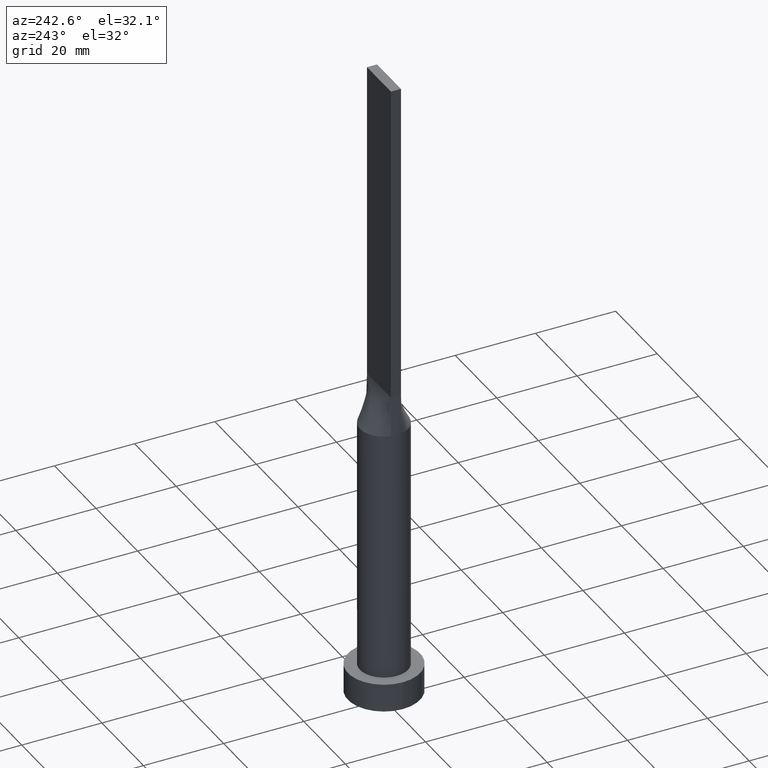
[diagram: clean part render]
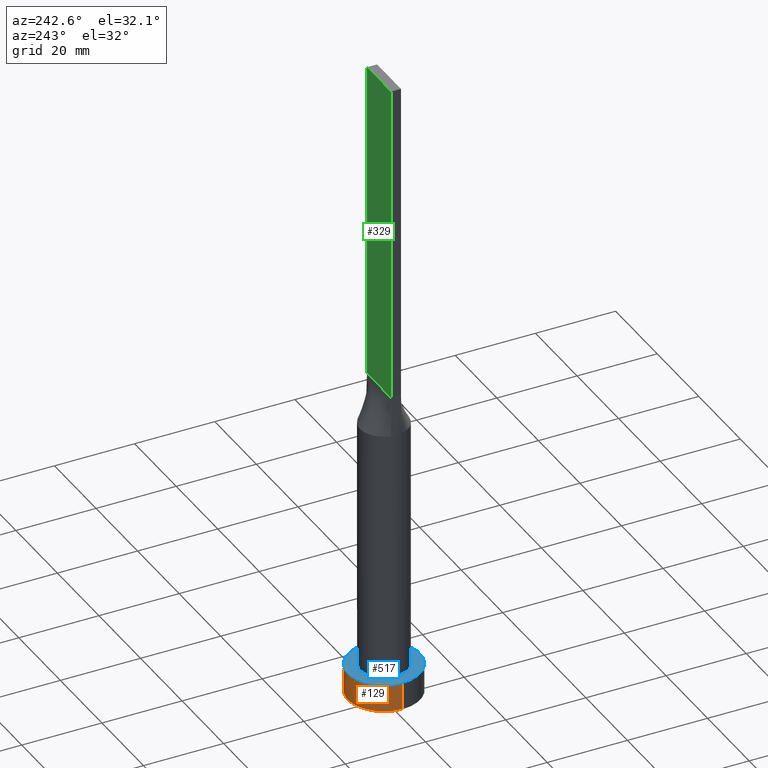
[diagram: same view with three faces highlighted in distinct colors, each labeled with its STEP entity id]
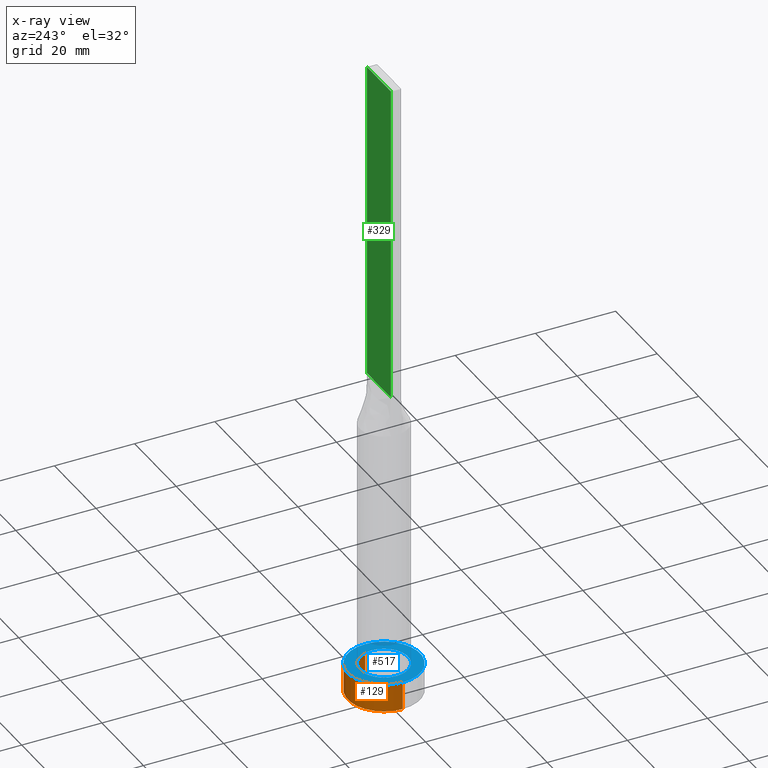
[diagram: x-ray of the same camera — body ghosted, the three highlighted faces saturated]
A machine part, auxiliary view with three faces highlighted in distinct colors.
The next image is the same camera in x-ray (body ghosted, the three faces saturated) — at least one of them is partly hidden behind the body in this view.
Their STEP definitions:

[orange] entity #129 — the highlighted cylindrical surface (partial cylindrical patch) has radius 9 mm, axis along (-0, -0, -1).
#40 = EDGE_CURVE ( 'NONE', #205, #430, #507, .T. ) ;
#47 = EDGE_LOOP ( 'NONE', ( #166, #367, #440, #488 ) ) ;
#53 = DIRECTION ( 'NONE',  ( 1.000000000000000000, 0.000000000000000000, 0.000000000000000000 ) ) ;
#54 = VECTOR ( 'NONE', #258, 1000.000000000000000 ) ;
#72 = CARTESIAN_POINT ( 'NONE',  ( 9.000000000000000000, 1.102182119232617714E-15, 7.000000000000000000 ) ) ;
#75 = LINE ( 'NONE', #72, #54 ) ;
#91 = CARTESIAN_POINT ( 'NONE',  ( -9.000000000000000000, 0.000000000000000000, 7.000000000000000000 ) ) ;
#117 = CARTESIAN_POINT ( 'NONE',  ( 9.000000000000000000, 1.102182119232617714E-15, 0.000000000000000000 ) ) ;
#124 = CARTESIAN_POINT ( 'NONE',  ( 0.000000000000000000, 0.000000000000000000, 0.000000000000000000 ) ) ;
#129 = ADVANCED_FACE ( 'NONE', ( #161 ), #530, .T. ) ;
#161 = FACE_OUTER_BOUND ( 'NONE', #47, .T. ) ;
#166 = ORIENTED_EDGE ( 'NONE', *, *, #40, .F. ) ;
#199 = CARTESIAN_POINT ( 'NONE',  ( -9.000000000000000000, 0.000000000000000000, 7.000000000000000000 ) ) ;
#205 = VERTEX_POINT ( 'NONE', #226 ) ;
#216 = EDGE_CURVE ( 'NONE', #430, #267, #404, .T. ) ;
#226 = CARTESIAN_POINT ( 'NONE',  ( 9.000000000000000000, 1.102182119232617714E-15, 7.000000000000000000 ) ) ;
#237 = DIRECTION ( 'NONE',  ( 0.000000000000000000, 0.000000000000000000, 1.000000000000000000 ) ) ;
#251 = DIRECTION ( 'NONE',  ( 1.000000000000000000, 0.000000000000000000, 0.000000000000000000 ) ) ;
#258 = DIRECTION ( 'NONE',  ( -0.000000000000000000, -0.000000000000000000, -1.000000000000000000 ) ) ;
#267 = VERTEX_POINT ( 'NONE', #554 ) ;
#272 = AXIS2_PLACEMENT_3D ( 'NONE', #483, #519, #365 ) ;
#310 = CIRCLE ( 'NONE', #429, 9.000000000000000000 ) ;
#312 = VERTEX_POINT ( 'NONE', #117 ) ;
#358 = VECTOR ( 'NONE', #596, 1000.000000000000000 ) ;
#365 = DIRECTION ( 'NONE',  ( -1.000000000000000000, 0.000000000000000000, 0.000000000000000000 ) ) ;
#367 = ORIENTED_EDGE ( 'NONE', *, *, #534, .T. ) ;
#404 = LINE ( 'NONE', #91, #358 ) ;
#429 = AXIS2_PLACEMENT_3D ( 'NONE', #124, #582, #251 ) ;
#430 = VERTEX_POINT ( 'NONE', #199 ) ;
#440 = ORIENTED_EDGE ( 'NONE', *, *, #500, .T. ) ;
#453 = AXIS2_PLACEMENT_3D ( 'NONE', #516, #237, #53 ) ;
#483 = CARTESIAN_POINT ( 'NONE',  ( 0.000000000000000000, 0.000000000000000000, 7.000000000000000000 ) ) ;
#488 = ORIENTED_EDGE ( 'NONE', *, *, #216, .F. ) ;
#500 = EDGE_CURVE ( 'NONE', #312, #267, #310, .T. ) ;
#507 = CIRCLE ( 'NONE', #453, 9.000000000000000000 ) ;
#516 = CARTESIAN_POINT ( 'NONE',  ( 0.000000000000000000, 0.000000000000000000, 7.000000000000000000 ) ) ;
#519 = DIRECTION ( 'NONE',  ( -0.000000000000000000, -0.000000000000000000, -1.000000000000000000 ) ) ;
#530 = CYLINDRICAL_SURFACE ( 'NONE', #272, 9.000000000000000000 ) ;
#534 = EDGE_CURVE ( 'NONE', #205, #312, #75, .T. ) ;
#554 = CARTESIAN_POINT ( 'NONE',  ( -9.000000000000000000, 0.000000000000000000, 0.000000000000000000 ) ) ;
#582 = DIRECTION ( 'NONE',  ( 0.000000000000000000, 0.000000000000000000, 1.000000000000000000 ) ) ;
#596 = DIRECTION ( 'NONE',  ( -0.000000000000000000, -0.000000000000000000, -1.000000000000000000 ) ) ;

[blue] entity #517 — the highlighted planar face has unit normal (0, 0, 1).
#40 = EDGE_CURVE ( 'NONE', #205, #430, #507, .T. ) ;
#41 = CARTESIAN_POINT ( 'NONE',  ( 0.000000000000000000, 0.000000000000000000, 7.000000000000000000 ) ) ;
#53 = DIRECTION ( 'NONE',  ( 1.000000000000000000, 0.000000000000000000, 0.000000000000000000 ) ) ;
#65 = DIRECTION ( 'NONE',  ( 0.000000000000000000, 0.000000000000000000, 1.000000000000000000 ) ) ;
#83 = EDGE_CURVE ( 'NONE', #558, #447, #184, .T. ) ;
#107 = EDGE_CURVE ( 'NONE', #430, #205, #252, .T. ) ;
#116 = ORIENTED_EDGE ( 'NONE', *, *, #107, .T. ) ;
#127 = ORIENTED_EDGE ( 'NONE', *, *, #83, .F. ) ;
#178 = DIRECTION ( 'NONE',  ( 1.000000000000000000, 0.000000000000000000, 0.000000000000000000 ) ) ;
#181 = CARTESIAN_POINT ( 'NONE',  ( -6.000000000000000888, 0.000000000000000000, 7.000000000000000000 ) ) ;
#184 = CIRCLE ( 'NONE', #531, 6.000000000000000888 ) ;
#186 = ORIENTED_EDGE ( 'NONE', *, *, #40, .T. ) ;
#199 = CARTESIAN_POINT ( 'NONE',  ( -9.000000000000000000, 0.000000000000000000, 7.000000000000000000 ) ) ;
#205 = VERTEX_POINT ( 'NONE', #226 ) ;
#214 = CARTESIAN_POINT ( 'NONE',  ( 0.000000000000000000, 0.000000000000000000, 7.000000000000000000 ) ) ;
#217 = ORIENTED_EDGE ( 'NONE', *, *, #584, .F. ) ;
#218 = CARTESIAN_POINT ( 'NONE',  ( 6.000000000000000888, 7.347880794884120722E-16, 7.000000000000000000 ) ) ;
#221 = PLANE ( 'NONE',  #408 ) ;
#226 = CARTESIAN_POINT ( 'NONE',  ( 9.000000000000000000, 1.102182119232617714E-15, 7.000000000000000000 ) ) ;
#237 = DIRECTION ( 'NONE',  ( 0.000000000000000000, 0.000000000000000000, 1.000000000000000000 ) ) ;
#245 = DIRECTION ( 'NONE',  ( 1.000000000000000000, 0.000000000000000000, 0.000000000000000000 ) ) ;
#252 = CIRCLE ( 'NONE', #588, 9.000000000000000000 ) ;
#298 = CARTESIAN_POINT ( 'NONE',  ( 0.000000000000000000, 0.000000000000000000, 7.000000000000000000 ) ) ;
#299 = DIRECTION ( 'NONE',  ( 0.000000000000000000, 0.000000000000000000, 1.000000000000000000 ) ) ;
#302 = FACE_BOUND ( 'NONE', #509, .T. ) ;
#400 = AXIS2_PLACEMENT_3D ( 'NONE', #214, #499, #178 ) ;
#408 = AXIS2_PLACEMENT_3D ( 'NONE', #41, #299, #493 ) ;
#430 = VERTEX_POINT ( 'NONE', #199 ) ;
#447 = VERTEX_POINT ( 'NONE', #181 ) ;
#449 = DIRECTION ( 'NONE',  ( 1.000000000000000000, 0.000000000000000000, 0.000000000000000000 ) ) ;
#453 = AXIS2_PLACEMENT_3D ( 'NONE', #516, #237, #53 ) ;
#455 = EDGE_LOOP ( 'NONE', ( #116, #186 ) ) ;
#487 = CARTESIAN_POINT ( 'NONE',  ( 0.000000000000000000, 0.000000000000000000, 7.000000000000000000 ) ) ;
#493 = DIRECTION ( 'NONE',  ( 1.000000000000000000, 0.000000000000000000, -0.000000000000000000 ) ) ;
#499 = DIRECTION ( 'NONE',  ( 0.000000000000000000, 0.000000000000000000, 1.000000000000000000 ) ) ;
#507 = CIRCLE ( 'NONE', #453, 9.000000000000000000 ) ;
#509 = EDGE_LOOP ( 'NONE', ( #217, #127 ) ) ;
#516 = CARTESIAN_POINT ( 'NONE',  ( 0.000000000000000000, 0.000000000000000000, 7.000000000000000000 ) ) ;
#517 = ADVANCED_FACE ( 'NONE', ( #302, #548 ), #221, .T. ) ;
#531 = AXIS2_PLACEMENT_3D ( 'NONE', #487, #541, #245 ) ;
#541 = DIRECTION ( 'NONE',  ( 0.000000000000000000, 0.000000000000000000, 1.000000000000000000 ) ) ;
#548 = FACE_OUTER_BOUND ( 'NONE', #455, .T. ) ;
#558 = VERTEX_POINT ( 'NONE', #218 ) ;
#560 = CIRCLE ( 'NONE', #400, 6.000000000000000888 ) ;
#584 = EDGE_CURVE ( 'NONE', #447, #558, #560, .T. ) ;
#588 = AXIS2_PLACEMENT_3D ( 'NONE', #298, #65, #449 ) ;

[green] entity #329 — the highlighted planar face has unit normal (0, -1, 0).
#14 = VECTOR ( 'NONE', #171, 1000.000000000000000 ) ;
#19 = DIRECTION ( 'NONE',  ( 0.000000000000000000, -0.000000000000000000, -1.000000000000000000 ) ) ;
#22 = ORIENTED_EDGE ( 'NONE', *, *, #450, .T. ) ;
#30 = VERTEX_POINT ( 'NONE', #105 ) ;
#39 = VERTEX_POINT ( 'NONE', #277 ) ;
#79 = LINE ( 'NONE', #261, #413 ) ;
#105 = CARTESIAN_POINT ( 'NONE',  ( 5.750000000000000000, 1.250000000000000222, 80.00000000000000000 ) ) ;
#152 = AXIS2_PLACEMENT_3D ( 'NONE', #235, #419, #19 ) ;
#159 = PLANE ( 'NONE',  #152 ) ;
#171 = DIRECTION ( 'NONE',  ( -1.000000000000000000, -0.000000000000000000, -0.000000000000000000 ) ) ;
#175 = EDGE_CURVE ( 'NONE', #39, #30, #79, .T. ) ;
#222 = VECTOR ( 'NONE', #478, 1000.000000000000000 ) ;
#235 = CARTESIAN_POINT ( 'NONE',  ( 5.750000000000000000, 1.250000000000000222, 160.0000000000000000 ) ) ;
#261 = CARTESIAN_POINT ( 'NONE',  ( 5.750000000000000000, 1.250000000000000222, 160.0000000000000000 ) ) ;
#277 = CARTESIAN_POINT ( 'NONE',  ( 5.750000000000000000, 1.250000000000000222, 160.0000000000000000 ) ) ;
#291 = VECTOR ( 'NONE', #586, 1000.000000000000000 ) ;
#296 = FACE_OUTER_BOUND ( 'NONE', #504, .T. ) ;
#313 = VERTEX_POINT ( 'NONE', #528 ) ;
#322 = CARTESIAN_POINT ( 'NONE',  ( 5.750000000000000000, 1.250000000000000222, 160.0000000000000000 ) ) ;
#329 = ADVANCED_FACE ( 'NONE', ( #296 ), #159, .F. ) ;
#391 = CARTESIAN_POINT ( 'NONE',  ( -5.750000000000000000, 1.250000000000000222, 160.0000000000000000 ) ) ;
#398 = EDGE_CURVE ( 'NONE', #39, #313, #522, .T. ) ;
#399 = CARTESIAN_POINT ( 'NONE',  ( -5.750000000000000000, 1.250000000000000222, 80.00000000000000000 ) ) ;
#413 = VECTOR ( 'NONE', #592, 1000.000000000000000 ) ;
#419 = DIRECTION ( 'NONE',  ( 0.000000000000000000, -1.000000000000000000, 0.000000000000000000 ) ) ;
#450 = EDGE_CURVE ( 'NONE', #30, #479, #543, .T. ) ;
#452 = CARTESIAN_POINT ( 'NONE',  ( -5.750000000000000000, 1.250000000000000222, 80.00000000000000000 ) ) ;
#478 = DIRECTION ( 'NONE',  ( -1.000000000000000000, 0.000000000000000000, 0.000000000000000000 ) ) ;
#479 = VERTEX_POINT ( 'NONE', #399 ) ;
#498 = ORIENTED_EDGE ( 'NONE', *, *, #398, .F. ) ;
#504 = EDGE_LOOP ( 'NONE', ( #22, #513, #498, #550 ) ) ;
#506 = LINE ( 'NONE', #391, #291 ) ;
#513 = ORIENTED_EDGE ( 'NONE', *, *, #601, .F. ) ;
#522 = LINE ( 'NONE', #322, #222 ) ;
#528 = CARTESIAN_POINT ( 'NONE',  ( -5.750000000000000000, 1.250000000000000222, 160.0000000000000000 ) ) ;
#543 = LINE ( 'NONE', #452, #14 ) ;
#550 = ORIENTED_EDGE ( 'NONE', *, *, #175, .T. ) ;
#586 = DIRECTION ( 'NONE',  ( -0.000000000000000000, -0.000000000000000000, -1.000000000000000000 ) ) ;
#592 = DIRECTION ( 'NONE',  ( -0.000000000000000000, -0.000000000000000000, -1.000000000000000000 ) ) ;
#601 = EDGE_CURVE ( 'NONE', #313, #479, #506, .T. ) ;